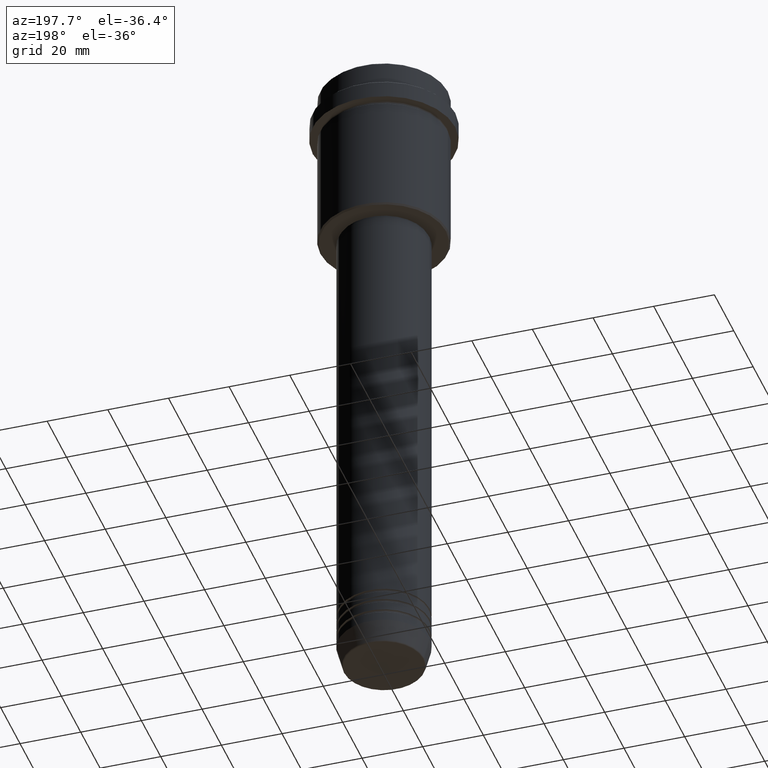
[diagram: clean part render]
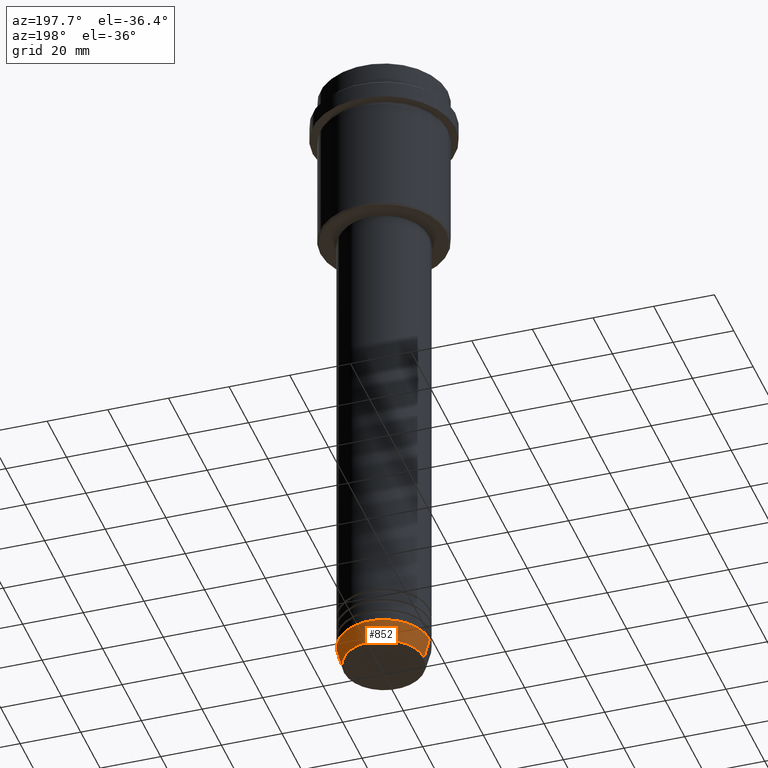
[diagram: same view with one face highlighted and labeled with its STEP entity id]
A machine part, auxiliary view. The second image highlights one B-rep face of the part: STEP entity #852.
In plain terms, the highlighted conical surface has half-angle 15 deg.
Its self-contained STEP definition (entity closure, byte-faithful):
#17 = CIRCLE ( 'NONE', #826, 13.22365507213719482 ) ;
#79 = CARTESIAN_POINT ( 'NONE',  ( 15.00000000000000000, 0.000000000000000000, -213.0000000000000284 ) ) ;
#85 = ORIENTED_EDGE ( 'NONE', *, *, #210, .F. ) ;
#100 = CONICAL_SURFACE ( 'NONE', #989, 15.00000000000000000, 0.2617993877991500740 ) ;
#110 = EDGE_CURVE ( 'NONE', #1271, #650, #177, .T. ) ;
#177 = LINE ( 'NONE', #611, #1299 ) ;
#210 = EDGE_CURVE ( 'NONE', #1171, #866, #1188, .T. ) ;
#221 = ORIENTED_EDGE ( 'NONE', *, *, #352, .F. ) ;
#352 = EDGE_CURVE ( 'NONE', #866, #650, #871, .T. ) ;
#545 = CARTESIAN_POINT ( 'NONE',  ( 0.000000000000000000, 0.000000000000000000, -213.0000000000000284 ) ) ;
#611 = CARTESIAN_POINT ( 'NONE',  ( -15.00000000000000000, 1.836970198721029589E-15, -213.0000000000000284 ) ) ;
#650 = VERTEX_POINT ( 'NONE', #1192 ) ;
#735 = ORIENTED_EDGE ( 'NONE', *, *, #110, .T. ) ;
#736 = EDGE_CURVE ( 'NONE', #1171, #1271, #17, .T. ) ;
#755 = DIRECTION ( 'NONE',  ( 0.2588190451025213501, 0.000000000000000000, 0.9659258262890680902 ) ) ;
#768 = DIRECTION ( 'NONE',  ( 1.000000000000000000, 0.000000000000000000, 0.000000000000000000 ) ) ;
#773 = EDGE_LOOP ( 'NONE', ( #892, #735, #221, #85 ) ) ;
#783 = DIRECTION ( 'NONE',  ( -0.000000000000000000, -0.000000000000000000, 1.000000000000000000 ) ) ;
#826 = AXIS2_PLACEMENT_3D ( 'NONE', #889, #897, #1003 ) ;
#852 = ADVANCED_FACE ( 'NONE', ( #877 ), #100, .T. ) ;
#866 = VERTEX_POINT ( 'NONE', #1096 ) ;
#871 = CIRCLE ( 'NONE', #1324, 15.00000000000000000 ) ;
#877 = FACE_OUTER_BOUND ( 'NONE', #773, .T. ) ;
#889 = CARTESIAN_POINT ( 'NONE',  ( 0.000000000000000000, 0.000000000000000000, -219.6294095225512706 ) ) ;
#892 = ORIENTED_EDGE ( 'NONE', *, *, #736, .T. ) ;
#897 = DIRECTION ( 'NONE',  ( -0.000000000000000000, -0.000000000000000000, 1.000000000000000000 ) ) ;
#982 = DIRECTION ( 'NONE',  ( -0.000000000000000000, -0.000000000000000000, 1.000000000000000000 ) ) ;
#989 = AXIS2_PLACEMENT_3D ( 'NONE', #545, #982, #1412 ) ;
#1003 = DIRECTION ( 'NONE',  ( 1.000000000000000000, 0.000000000000000000, 0.000000000000000000 ) ) ;
#1012 = CARTESIAN_POINT ( 'NONE',  ( 0.000000000000000000, 0.000000000000000000, -213.0000000000000284 ) ) ;
#1051 = DIRECTION ( 'NONE',  ( -0.2588190451025213501, 3.169619151431772337E-17, 0.9659258262890680902 ) ) ;
#1096 = CARTESIAN_POINT ( 'NONE',  ( 15.00000000000000000, 0.000000000000000000, -213.0000000000000284 ) ) ;
#1167 = VECTOR ( 'NONE', #755, 1000.000000000000000 ) ;
#1171 = VERTEX_POINT ( 'NONE', #1320 ) ;
#1188 = LINE ( 'NONE', #79, #1167 ) ;
#1192 = CARTESIAN_POINT ( 'NONE',  ( -15.00000000000000000, 1.836970198721029589E-15, -213.0000000000000284 ) ) ;
#1203 = CARTESIAN_POINT ( 'NONE',  ( -13.22365507213719660, 1.728200442216588780E-15, -219.6294095225512706 ) ) ;
#1271 = VERTEX_POINT ( 'NONE', #1203 ) ;
#1299 = VECTOR ( 'NONE', #1051, 1000.000000000000000 ) ;
#1320 = CARTESIAN_POINT ( 'NONE',  ( 13.22365507213719482, 0.000000000000000000, -219.6294095225512706 ) ) ;
#1324 = AXIS2_PLACEMENT_3D ( 'NONE', #1012, #783, #768 ) ;
#1412 = DIRECTION ( 'NONE',  ( 1.000000000000000000, 0.000000000000000000, 0.000000000000000000 ) ) ;